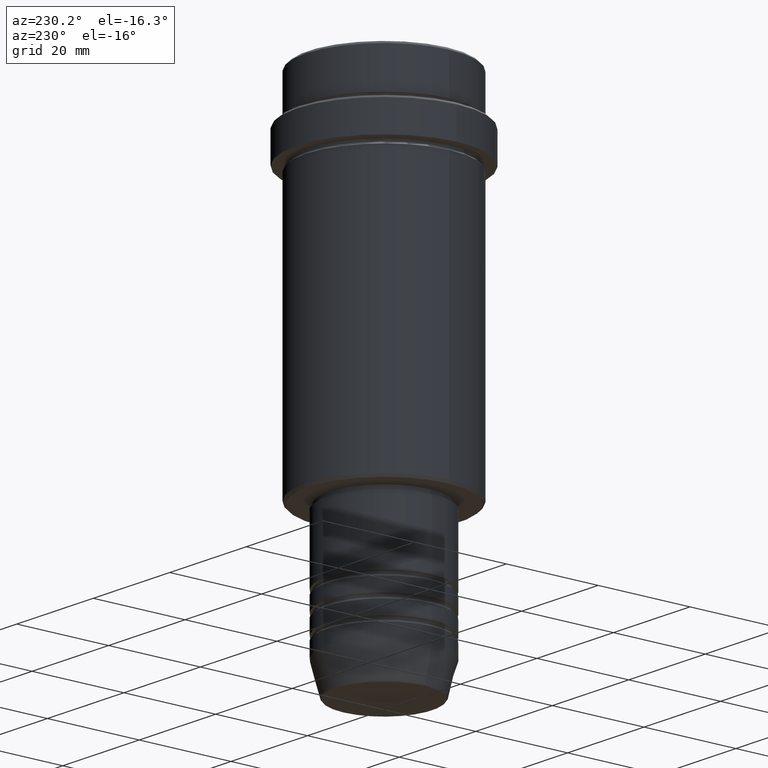
[diagram: clean part render]
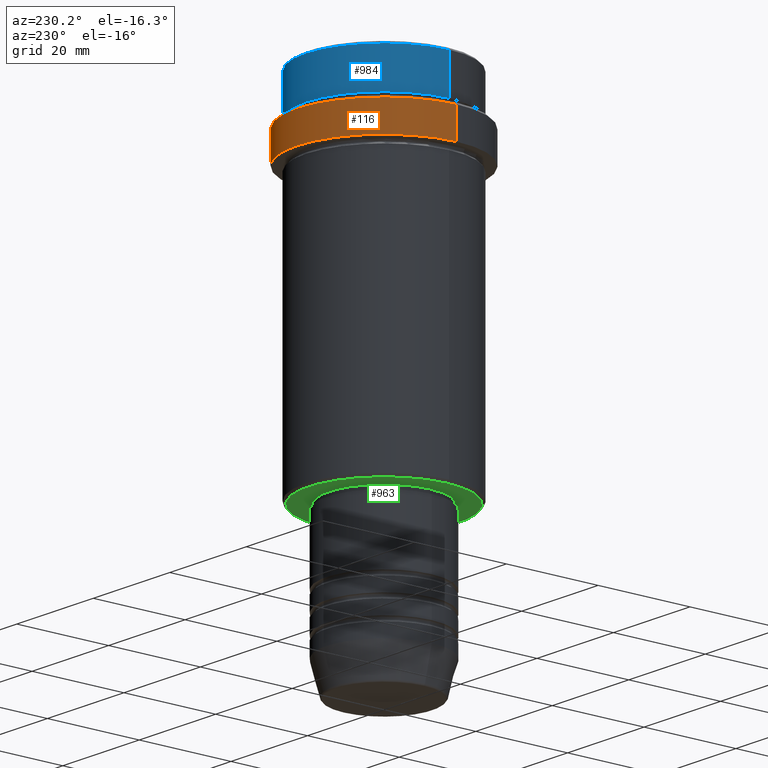
[diagram: same view with three faces highlighted in distinct colors, each labeled with its STEP entity id]
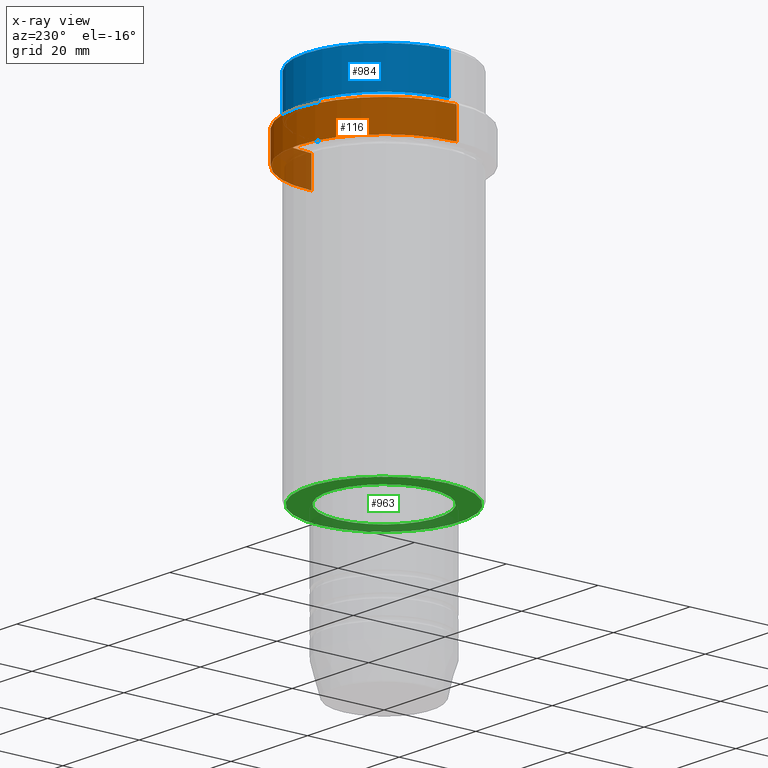
[diagram: x-ray of the same camera — body ghosted, the three highlighted faces saturated]
A machine part, auxiliary view with three faces highlighted in distinct colors.
The next image is the same camera in x-ray (body ghosted, the three faces saturated) — at least one of them is partly hidden behind the body in this view.
Their STEP definitions:

[orange] entity #116 — the highlighted cylindrical surface (partial cylindrical patch) has radius 19 mm, axis along (-0, -0, 1).
#2 = CIRCLE ( 'NONE', #1093, 18.99999999999999289 ) ;
#24 = CARTESIAN_POINT ( 'NONE',  ( -18.99999999999999289, 2.326828918379970182E-15, -10.49999999999998224 ) ) ;
#43 = ORIENTED_EDGE ( 'NONE', *, *, #257, .T. ) ;
#84 = VECTOR ( 'NONE', #1039, 1000.000000000000000 ) ;
#116 = ADVANCED_FACE ( 'NONE', ( #598 ), #1366, .T. ) ;
#141 = CARTESIAN_POINT ( 'NONE',  ( 18.99999999999999289, 0.000000000000000000, -10.49999999999998224 ) ) ;
#153 = EDGE_CURVE ( 'NONE', #312, #1267, #701, .T. ) ;
#169 = VERTEX_POINT ( 'NONE', #489 ) ;
#171 = DIRECTION ( 'NONE',  ( -0.000000000000000000, -0.000000000000000000, 1.000000000000000000 ) ) ;
#191 = VECTOR ( 'NONE', #171, 1000.000000000000000 ) ;
#224 = VERTEX_POINT ( 'NONE', #141 ) ;
#257 = EDGE_CURVE ( 'NONE', #1267, #224, #1259, .T. ) ;
#292 = DIRECTION ( 'NONE',  ( 0.000000000000000000, 0.000000000000000000, -1.000000000000000000 ) ) ;
#312 = VERTEX_POINT ( 'NONE', #957 ) ;
#461 = ORIENTED_EDGE ( 'NONE', *, *, #153, .T. ) ;
#467 = DIRECTION ( 'NONE',  ( -0.000000000000000000, -0.000000000000000000, 1.000000000000000000 ) ) ;
#477 = EDGE_LOOP ( 'NONE', ( #983, #461, #43, #608 ) ) ;
#489 = CARTESIAN_POINT ( 'NONE',  ( 18.99999999999999289, 0.000000000000000000, -17.00000000000000000 ) ) ;
#542 = EDGE_CURVE ( 'NONE', #169, #224, #921, .T. ) ;
#598 = FACE_OUTER_BOUND ( 'NONE', #477, .T. ) ;
#608 = ORIENTED_EDGE ( 'NONE', *, *, #542, .F. ) ;
#664 = AXIS2_PLACEMENT_3D ( 'NONE', #926, #467, #1270 ) ;
#701 = LINE ( 'NONE', #1350, #191 ) ;
#721 = DIRECTION ( 'NONE',  ( 1.000000000000000000, 0.000000000000000000, 0.000000000000000000 ) ) ;
#819 = CARTESIAN_POINT ( 'NONE',  ( 0.000000000000000000, 0.000000000000000000, -10.49999999999998224 ) ) ;
#868 = DIRECTION ( 'NONE',  ( -0.000000000000000000, -0.000000000000000000, 1.000000000000000000 ) ) ;
#921 = LINE ( 'NONE', #936, #84 ) ;
#926 = CARTESIAN_POINT ( 'NONE',  ( 0.000000000000000000, 0.000000000000000000, 0.000000000000000000 ) ) ;
#936 = CARTESIAN_POINT ( 'NONE',  ( 18.99999999999999289, 0.000000000000000000, 0.000000000000000000 ) ) ;
#957 = CARTESIAN_POINT ( 'NONE',  ( -18.99999999999999289, 2.326828918379970182E-15, -17.00000000000000000 ) ) ;
#983 = ORIENTED_EDGE ( 'NONE', *, *, #1190, .T. ) ;
#1039 = DIRECTION ( 'NONE',  ( -0.000000000000000000, -0.000000000000000000, 1.000000000000000000 ) ) ;
#1093 = AXIS2_PLACEMENT_3D ( 'NONE', #1336, #868, #1188 ) ;
#1133 = AXIS2_PLACEMENT_3D ( 'NONE', #819, #292, #721 ) ;
#1188 = DIRECTION ( 'NONE',  ( 1.000000000000000000, 0.000000000000000000, 0.000000000000000000 ) ) ;
#1190 = EDGE_CURVE ( 'NONE', #169, #312, #2, .T. ) ;
#1259 = CIRCLE ( 'NONE', #1133, 18.99999999999999289 ) ;
#1267 = VERTEX_POINT ( 'NONE', #24 ) ;
#1270 = DIRECTION ( 'NONE',  ( 1.000000000000000000, 0.000000000000000000, 0.000000000000000000 ) ) ;
#1336 = CARTESIAN_POINT ( 'NONE',  ( 0.000000000000000000, 0.000000000000000000, -17.00000000000000000 ) ) ;
#1350 = CARTESIAN_POINT ( 'NONE',  ( -18.99999999999999289, 2.326828918379970182E-15, 0.000000000000000000 ) ) ;
#1366 = CYLINDRICAL_SURFACE ( 'NONE', #664, 18.99999999999999289 ) ;

[blue] entity #984 — the highlighted cylindrical surface (partial cylindrical patch) has radius 17 mm, axis along (-0, -0, 1).
#1 = EDGE_CURVE ( 'NONE', #967, #1031, #1087, .T. ) ;
#80 = CARTESIAN_POINT ( 'NONE',  ( 16.99999999999999645, 0.000000000000000000, 0.000000000000000000 ) ) ;
#152 = VECTOR ( 'NONE', #375, 1000.000000000000000 ) ;
#168 = DIRECTION ( 'NONE',  ( -0.000000000000000000, -0.000000000000000000, 1.000000000000000000 ) ) ;
#202 = CYLINDRICAL_SURFACE ( 'NONE', #1355, 16.99999999999999645 ) ;
#327 = EDGE_CURVE ( 'NONE', #1215, #967, #968, .T. ) ;
#375 = DIRECTION ( 'NONE',  ( -0.000000000000000000, -0.000000000000000000, 1.000000000000000000 ) ) ;
#405 = CARTESIAN_POINT ( 'NONE',  ( -16.99999999999999645, 2.081899558550499885E-15, -0.4999999999999657496 ) ) ;
#456 = ORIENTED_EDGE ( 'NONE', *, *, #327, .T. ) ;
#487 = CARTESIAN_POINT ( 'NONE',  ( -16.99999999999999645, 2.081899558550499885E-15, 0.000000000000000000 ) ) ;
#514 = AXIS2_PLACEMENT_3D ( 'NONE', #712, #168, #818 ) ;
#611 = CARTESIAN_POINT ( 'NONE',  ( 16.99999999999999289, 0.000000000000000000, -8.999999999999998224 ) ) ;
#652 = CARTESIAN_POINT ( 'NONE',  ( -16.99999999999999289, 2.081899558550499885E-15, -8.999999999999998224 ) ) ;
#653 = CARTESIAN_POINT ( 'NONE',  ( 0.000000000000000000, 0.000000000000000000, 0.000000000000000000 ) ) ;
#659 = ORIENTED_EDGE ( 'NONE', *, *, #1308, .F. ) ;
#712 = CARTESIAN_POINT ( 'NONE',  ( 0.000000000000000000, 0.000000000000000000, -8.999999999999998224 ) ) ;
#742 = CARTESIAN_POINT ( 'NONE',  ( 0.000000000000000000, 0.000000000000000000, -0.4999999999999657496 ) ) ;
#818 = DIRECTION ( 'NONE',  ( 1.000000000000000000, 0.000000000000000000, 0.000000000000000000 ) ) ;
#850 = CARTESIAN_POINT ( 'NONE',  ( 16.99999999999999645, 0.000000000000000000, -0.4999999999999657496 ) ) ;
#869 = DIRECTION ( 'NONE',  ( -0.000000000000000000, -0.000000000000000000, 1.000000000000000000 ) ) ;
#897 = EDGE_CURVE ( 'NONE', #908, #1215, #1417, .T. ) ;
#908 = VERTEX_POINT ( 'NONE', #611 ) ;
#931 = ORIENTED_EDGE ( 'NONE', *, *, #1, .T. ) ;
#932 = LINE ( 'NONE', #80, #1207 ) ;
#967 = VERTEX_POINT ( 'NONE', #405 ) ;
#968 = LINE ( 'NONE', #487, #152 ) ;
#984 = ADVANCED_FACE ( 'NONE', ( #1160 ), #202, .T. ) ;
#1031 = VERTEX_POINT ( 'NONE', #850 ) ;
#1087 = CIRCLE ( 'NONE', #1372, 16.99999999999999645 ) ;
#1096 = DIRECTION ( 'NONE',  ( 1.000000000000000000, 0.000000000000000000, 0.000000000000000000 ) ) ;
#1102 = EDGE_LOOP ( 'NONE', ( #1258, #456, #931, #659 ) ) ;
#1160 = FACE_OUTER_BOUND ( 'NONE', #1102, .T. ) ;
#1194 = DIRECTION ( 'NONE',  ( 1.000000000000000000, 0.000000000000000000, 0.000000000000000000 ) ) ;
#1207 = VECTOR ( 'NONE', #1384, 1000.000000000000000 ) ;
#1215 = VERTEX_POINT ( 'NONE', #652 ) ;
#1258 = ORIENTED_EDGE ( 'NONE', *, *, #897, .T. ) ;
#1308 = EDGE_CURVE ( 'NONE', #908, #1031, #932, .T. ) ;
#1355 = AXIS2_PLACEMENT_3D ( 'NONE', #653, #869, #1096 ) ;
#1372 = AXIS2_PLACEMENT_3D ( 'NONE', #742, #1393, #1194 ) ;
#1384 = DIRECTION ( 'NONE',  ( -0.000000000000000000, -0.000000000000000000, 1.000000000000000000 ) ) ;
#1393 = DIRECTION ( 'NONE',  ( 0.000000000000000000, 0.000000000000000000, -1.000000000000000000 ) ) ;
#1417 = CIRCLE ( 'NONE', #514, 16.99999999999999289 ) ;

[green] entity #963 — the highlighted planar face has unit normal (0, 0, -1).
#12 = ORIENTED_EDGE ( 'NONE', *, *, #1150, .T. ) ;
#25 = EDGE_CURVE ( 'NONE', #60, #1186, #688, .T. ) ;
#60 = VERTEX_POINT ( 'NONE', #1081 ) ;
#82 = AXIS2_PLACEMENT_3D ( 'NONE', #128, #1387, #143 ) ;
#87 = DIRECTION ( 'NONE',  ( -1.000000000000000000, 0.000000000000000000, -0.000000000000000000 ) ) ;
#108 = VERTEX_POINT ( 'NONE', #149 ) ;
#128 = CARTESIAN_POINT ( 'NONE',  ( 0.000000000000000000, 0.000000000000000000, -76.00000000000000000 ) ) ;
#143 = DIRECTION ( 'NONE',  ( -1.000000000000000000, 0.000000000000000000, 0.000000000000000000 ) ) ;
#149 = CARTESIAN_POINT ( 'NONE',  ( 11.99999999999999289, 0.000000000000000000, -76.00000000000000000 ) ) ;
#175 = AXIS2_PLACEMENT_3D ( 'NONE', #1193, #1086, #414 ) ;
#236 = AXIS2_PLACEMENT_3D ( 'NONE', #925, #1035, #705 ) ;
#414 = DIRECTION ( 'NONE',  ( 1.000000000000000000, 0.000000000000000000, 0.000000000000000000 ) ) ;
#426 = ORIENTED_EDGE ( 'NONE', *, *, #25, .T. ) ;
#428 = EDGE_LOOP ( 'NONE', ( #1325, #426 ) ) ;
#507 = FACE_BOUND ( 'NONE', #1319, .T. ) ;
#524 = FACE_OUTER_BOUND ( 'NONE', #428, .T. ) ;
#539 = CIRCLE ( 'NONE', #1402, 11.99999999999999289 ) ;
#631 = DIRECTION ( 'NONE',  ( 1.000000000000000000, 0.000000000000000000, 0.000000000000000000 ) ) ;
#688 = CIRCLE ( 'NONE', #82, 16.49999999999998579 ) ;
#705 = DIRECTION ( 'NONE',  ( -1.000000000000000000, 0.000000000000000000, 0.000000000000000000 ) ) ;
#744 = CARTESIAN_POINT ( 'NONE',  ( 0.000000000000000000, 0.000000000000000000, -76.00000000000000000 ) ) ;
#780 = AXIS2_PLACEMENT_3D ( 'NONE', #1399, #835, #87 ) ;
#823 = EDGE_CURVE ( 'NONE', #1186, #60, #972, .T. ) ;
#835 = DIRECTION ( 'NONE',  ( 0.000000000000000000, 0.000000000000000000, -1.000000000000000000 ) ) ;
#849 = DIRECTION ( 'NONE',  ( -0.000000000000000000, -0.000000000000000000, 1.000000000000000000 ) ) ;
#886 = VERTEX_POINT ( 'NONE', #1377 ) ;
#925 = CARTESIAN_POINT ( 'NONE',  ( 0.000000000000000000, 0.000000000000000000, -76.00000000000000000 ) ) ;
#960 = PLANE ( 'NONE',  #780 ) ;
#963 = ADVANCED_FACE ( 'NONE', ( #524, #507 ), #960, .T. ) ;
#972 = CIRCLE ( 'NONE', #236, 16.49999999999998579 ) ;
#995 = EDGE_CURVE ( 'NONE', #108, #886, #1068, .T. ) ;
#1003 = ORIENTED_EDGE ( 'NONE', *, *, #995, .T. ) ;
#1035 = DIRECTION ( 'NONE',  ( 0.000000000000000000, 0.000000000000000000, -1.000000000000000000 ) ) ;
#1068 = CIRCLE ( 'NONE', #175, 11.99999999999999289 ) ;
#1081 = CARTESIAN_POINT ( 'NONE',  ( -16.49999999999998579, 2.051283388571815704E-15, -76.00000000000000000 ) ) ;
#1086 = DIRECTION ( 'NONE',  ( -0.000000000000000000, -0.000000000000000000, 1.000000000000000000 ) ) ;
#1150 = EDGE_CURVE ( 'NONE', #886, #108, #539, .T. ) ;
#1186 = VERTEX_POINT ( 'NONE', #1197 ) ;
#1193 = CARTESIAN_POINT ( 'NONE',  ( 0.000000000000000000, 0.000000000000000000, -76.00000000000000000 ) ) ;
#1197 = CARTESIAN_POINT ( 'NONE',  ( 16.49999999999998579, 0.000000000000000000, -76.00000000000000000 ) ) ;
#1319 = EDGE_LOOP ( 'NONE', ( #1003, #12 ) ) ;
#1325 = ORIENTED_EDGE ( 'NONE', *, *, #823, .T. ) ;
#1377 = CARTESIAN_POINT ( 'NONE',  ( -11.99999999999999289, 1.469576158976823158E-15, -76.00000000000000000 ) ) ;
#1387 = DIRECTION ( 'NONE',  ( 0.000000000000000000, 0.000000000000000000, -1.000000000000000000 ) ) ;
#1399 = CARTESIAN_POINT ( 'NONE',  ( 0.000000000000000000, 17.00000000000000000, -76.00000000000000000 ) ) ;
#1402 = AXIS2_PLACEMENT_3D ( 'NONE', #744, #849, #631 ) ;